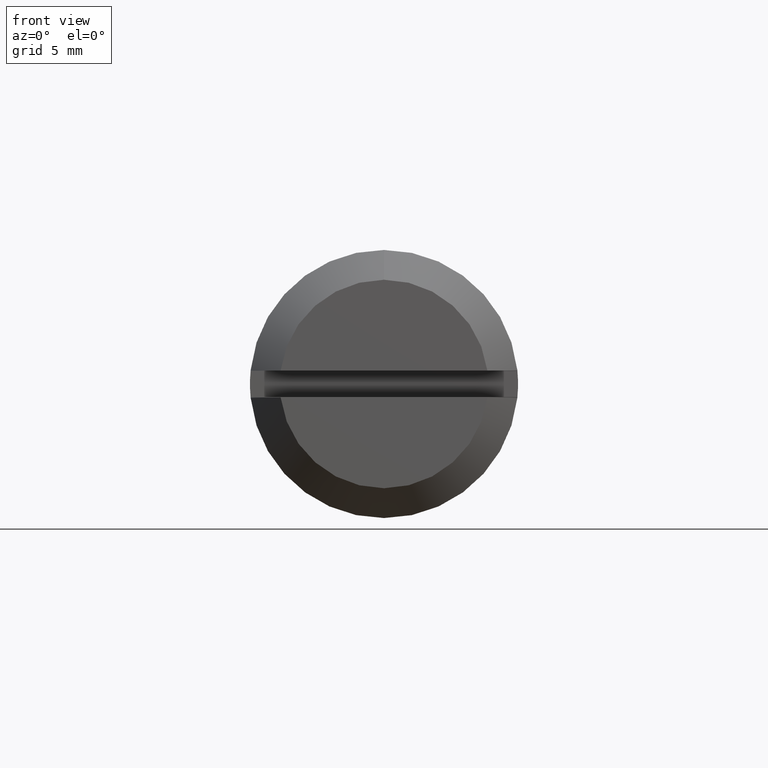
[diagram: clean part render]
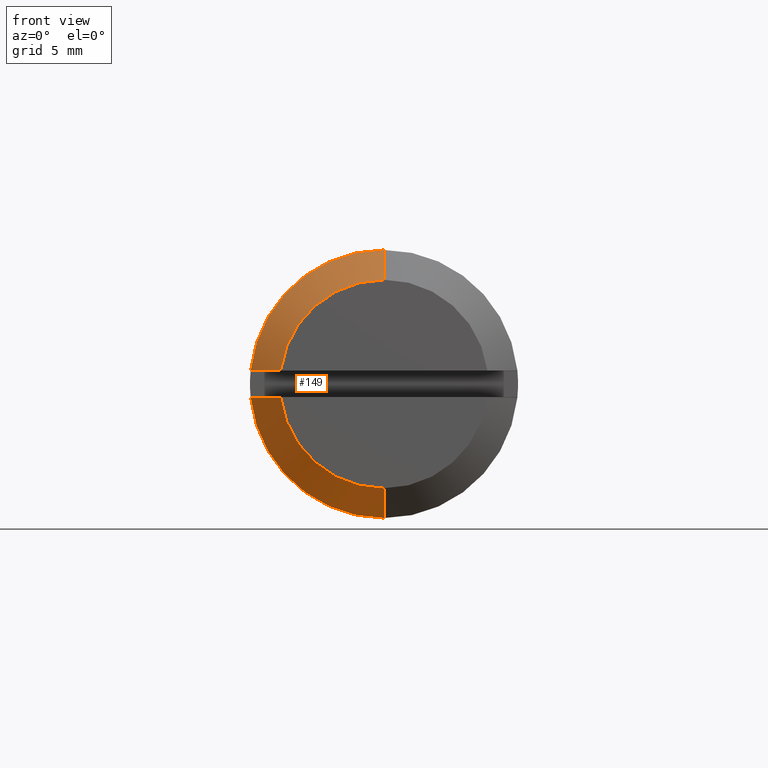
[diagram: same view with one face highlighted and labeled with its STEP entity id]
A machine part, front view. The second image highlights one B-rep face of the part: STEP entity #149.
In plain terms, the highlighted face is a freeform B-spline surface patch.
Its self-contained STEP definition (entity closure, byte-faithful):
#149=ADVANCED_FACE('',(#530),#529,.T.);
#529=( BOUNDED_SURFACE() B_SPLINE_SURFACE( 2,1,((#787,#788),(#789,#790),(#791,#792),(#793,#794),(#795,#796)), .UNSPECIFIED.,.F.,.F.,.F.) B_SPLINE_SURFACE_WITH_KNOTS((3,2,3),(2,2),(0.00000000000E+00,5.00000000000E-01,1.00000000000E+00),(0.00000000000E+00,1.00000000000E+00), .UNSPECIFIED. ) GEOMETRIC_REPRESENTATION_ITEM() RATIONAL_B_SPLINE_SURFACE(((1.00000000000E+00,1.00000000000E+00),(7.07106781187E-01,7.07106781187E-01),(1.00000000000E+00,1.00000000000E+00),(7.07106781187E-01,7.07106781187E-01),(1.00000000000E+00,1.00000000000E+00))) REPRESENTATION_ITEM('') SURFACE() );
#530=FACE_OUTER_BOUND('',#797,.T.);
#787=CARTESIAN_POINT('',(-1.20001291591E+01,8.57224695502E-16,-6.99977084086E+00));
#788=CARTESIAN_POINT('',(-9.99977084086E+00,1.10219793667E-15,-9.00012915914E+00));
#789=CARTESIAN_POINT('',(-1.20001291591E+01,6.99977084086E+00,-6.99977084086E+00));
#790=CARTESIAN_POINT('',(-9.99977084086E+00,9.00012915914E+00,-9.00012915914E+00));
#791=CARTESIAN_POINT('',(-1.20001291591E+01,6.99977084086E+00,4.28612347751E-16));
#792=CARTESIAN_POINT('',(-9.99977084086E+00,9.00012915914E+00,5.51098968333E-16));
#793=CARTESIAN_POINT('',(-1.20001291591E+01,6.99977084086E+00,6.99977084086E+00));
#794=CARTESIAN_POINT('',(-9.99977084086E+00,9.00012915914E+00,9.00012915914E+00));
#795=CARTESIAN_POINT('',(-1.20001291591E+01,0.00000000000E+00,6.99977084086E+00));
#796=CARTESIAN_POINT('',(-9.99977084086E+00,0.00000000000E+00,9.00012915914E+00));
#797=EDGE_LOOP('',(#1008,#1009,#1010,#1011,#1012,#1013,#1014,#1015));
#1008=ORIENTED_EDGE('',*,*,#1096,.F.);
#1009=ORIENTED_EDGE('',*,*,#1108,.F.);
#1010=ORIENTED_EDGE('',*,*,#1105,.F.);
#1011=ORIENTED_EDGE('',*,*,#1104,.F.);
#1012=ORIENTED_EDGE('',*,*,#1100,.F.);
#1013=ORIENTED_EDGE('',*,*,#1122,.T.);
#1014=ORIENTED_EDGE('',*,*,#1118,.T.);
#1015=ORIENTED_EDGE('',*,*,#1123,.F.);
#1096=EDGE_CURVE('',#1574,#1575,#1576,.T.);
#1100=EDGE_CURVE('',#1596,#1603,#1604,.T.);
#1104=EDGE_CURVE('',#1603,#1616,#1630,.T.);
#1105=EDGE_CURVE('',#1616,#1636,#1637,.T.);
#1108=EDGE_CURVE('',#1636,#1574,#1656,.T.);
#1118=EDGE_CURVE('',#1718,#1719,#1720,.T.);
#1122=EDGE_CURVE('',#1596,#1718,#1744,.T.);
#1123=EDGE_CURVE('',#1575,#1719,#1750,.T.);
#1574=VERTEX_POINT('',#2071);
#1575=VERTEX_POINT('',#2072);
#1576=CIRCLE('',#2076,7.00000000000E+00);
#1596=VERTEX_POINT('',#2086);
#1603=VERTEX_POINT('',#2091);
#1604=CIRCLE('',#2095,7.00000000000E+00);
#1616=VERTEX_POINT('',#2099);
#1630=(BOUNDED_CURVE() B_SPLINE_CURVE(3,(#2108,#2109,#2110,#2111),.UNSPECIFIED.,.F.,.F.) B_SPLINE_CURVE_WITH_KNOTS((4,4),(3.68298790015E-02,3.96928572528E-02),.UNSPECIFIED.) CURVE() GEOMETRIC_REPRESENTATION_ITEM() RATIONAL_B_SPLINE_CURVE((1.00000000000E+00,1.00000000000E+00,1.00000000000E+00,1.00000000000E+00)) REPRESENTATION_ITEM('') );
#1636=VERTEX_POINT('',#2112);
#1637=CIRCLE('',#2116,8.99990000000E+00);
#1656=(BOUNDED_CURVE() B_SPLINE_CURVE(3,(#2125,#2126,#2127,#2128),.UNSPECIFIED.,.F.,.F.) B_SPLINE_CURVE_WITH_KNOTS((4,4),(1.52743872715E-02,1.81118693173E-02),.UNSPECIFIED.) CURVE() GEOMETRIC_REPRESENTATION_ITEM() RATIONAL_B_SPLINE_CURVE((1.00000000000E+00,1.00000000000E+00,1.00000000000E+00,1.00000000000E+00)) REPRESENTATION_ITEM('') );
#1718=VERTEX_POINT('',#2155);
#1719=VERTEX_POINT('',#2156);
#1720=CIRCLE('',#2160,9.00000000000E+00);
#1744=(BOUNDED_CURVE() B_SPLINE_CURVE(1,(#2169,#2170),.UNSPECIFIED.,.F.,.F.) B_SPLINE_CURVE_WITH_KNOTS((2,2),(1.14550194150E-04,9.99935425764E-01),.UNSPECIFIED.) CURVE() GEOMETRIC_REPRESENTATION_ITEM() RATIONAL_B_SPLINE_CURVE((1.00000000000E+00,1.00000000000E+00)) REPRESENTATION_ITEM('') );
#1750=(BOUNDED_CURVE() B_SPLINE_CURVE(1,(#2171,#2172),.UNSPECIFIED.,.F.,.F.) B_SPLINE_CURVE_WITH_KNOTS((2,2),(0.00000000000E+00,1.00000000000E+00),.UNSPECIFIED.) CURVE() GEOMETRIC_REPRESENTATION_ITEM() RATIONAL_B_SPLINE_CURVE((7.50000000000E-01,7.50000000000E-01)) REPRESENTATION_ITEM('') );
#2071=CARTESIAN_POINT('',(-1.19999000000E+01,6.94190175672E+00,-9.00000000000E-01));
#2072=CARTESIAN_POINT('',(-1.19999000000E+01,1.77635683940E-15,-7.00000000000E+00));
#2073=CARTESIAN_POINT('',(-1.19999000000E+01,0.00000000000E+00,0.00000000000E+00));
#2074=DIRECTION('',(-1.00000000000E+00,0.00000000000E+00,0.00000000000E+00));
#2075=DIRECTION('',(-0.00000000000E+00,9.91700250960E-01,-1.28571428571E-01));
#2076=AXIS2_PLACEMENT_3D('',#2073,#2074,#2075);
#2086=CARTESIAN_POINT('',(-1.19999000000E+01,-4.61127424522E-06,7.00000000000E+00));
#2091=CARTESIAN_POINT('',(-1.19999000000E+01,6.94190175672E+00,9.00000000000E-01));
#2092=CARTESIAN_POINT('',(-1.19999000000E+01,0.00000000000E+00,0.00000000000E+00));
#2093=DIRECTION('',(-1.00000000000E+00,0.00000000000E+00,0.00000000000E+00));
#2094=DIRECTION('',(-0.00000000000E+00,-0.00000000000E+00,-1.00000000000E+00));
#2095=AXIS2_PLACEMENT_3D('',#2092,#2093,#2094);
#2099=CARTESIAN_POINT('',(-1.00000000000E+01,8.95478643017E+00,9.00000000000E-01));
#2108=CARTESIAN_POINT('',(-1.19999000000E+01,6.94190175672E+00,9.00000000000E-01));
#2109=CARTESIAN_POINT('',(-1.13338924097E+01,7.61348330534E+00,9.00000000000E-01));
#2110=CARTESIAN_POINT('',(-1.06671192296E+01,8.28430630192E+00,9.00000000000E-01));
#2111=CARTESIAN_POINT('',(-1.00000000000E+01,8.95478643017E+00,9.00000000000E-01));
#2112=CARTESIAN_POINT('',(-1.00000000000E+01,8.95478643017E+00,-9.00000000000E-01));
#2113=CARTESIAN_POINT('',(-1.00000000000E+01,0.00000000000E+00,0.00000000000E+00));
#2114=DIRECTION('',(-1.00000000000E+00,0.00000000000E+00,0.00000000000E+00));
#2115=DIRECTION('',(-0.00000000000E+00,-0.00000000000E+00,-1.00000000000E+00));
#2116=AXIS2_PLACEMENT_3D('',#2113,#2114,#2115);
#2125=CARTESIAN_POINT('',(-1.00000000000E+01,8.95478643017E+00,-9.00000000000E-01));
#2126=CARTESIAN_POINT('',(-1.06671184612E+01,8.28430707420E+00,-9.00000000000E-01));
#2127=CARTESIAN_POINT('',(-1.13338914218E+01,7.61348430153E+00,-9.00000000000E-01));
#2128=CARTESIAN_POINT('',(-1.19999000000E+01,6.94190175672E+00,-9.00000000000E-01));
#2155=CARTESIAN_POINT('',(-9.99990000000E+00,0.00000000000E+00,9.00000000000E+00));
#2156=CARTESIAN_POINT('',(-9.99990000000E+00,5.92118946467E-16,-9.00000000000E+00));
#2157=CARTESIAN_POINT('',(-9.99990000000E+00,0.00000000000E+00,0.00000000000E+00));
#2158=DIRECTION('',(-1.00000000000E+00,0.00000000000E+00,0.00000000000E+00));
#2159=DIRECTION('',(0.00000000000E+00,-1.22460635382E-16,1.00000000000E+00));
#2160=AXIS2_PLACEMENT_3D('',#2157,#2158,#2159);
#2169=CARTESIAN_POINT('',(-1.19999000177E+01,-1.71444889101E-15,6.99999998229E+00));
#2170=CARTESIAN_POINT('',(-9.99990001247E+00,-2.20429143383E-15,8.99999998753E+00));
#2171=CARTESIAN_POINT('',(-1.20001291591E+01,2.07241631263E-15,-6.99977084086E+00));
#2172=CARTESIAN_POINT('',(-9.99977084086E+00,2.07241631263E-15,-9.00012915914E+00));